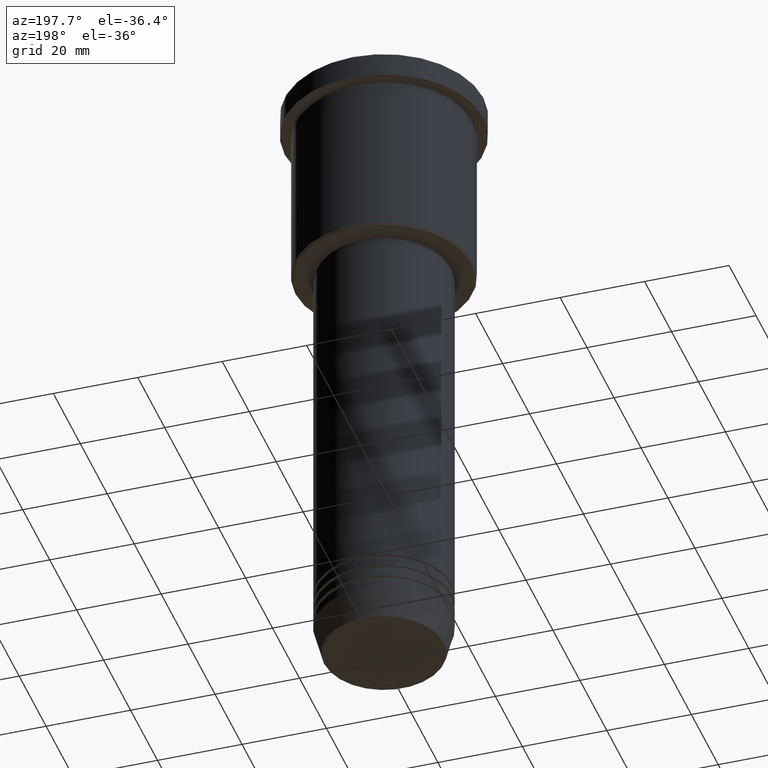
[diagram: clean part render]
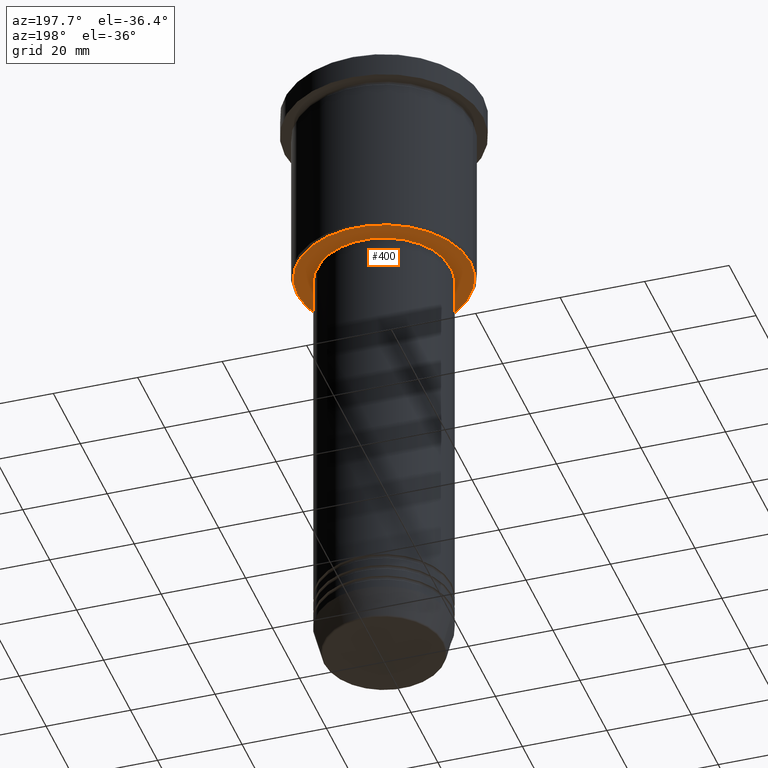
[diagram: same view with one face highlighted and labeled with its STEP entity id]
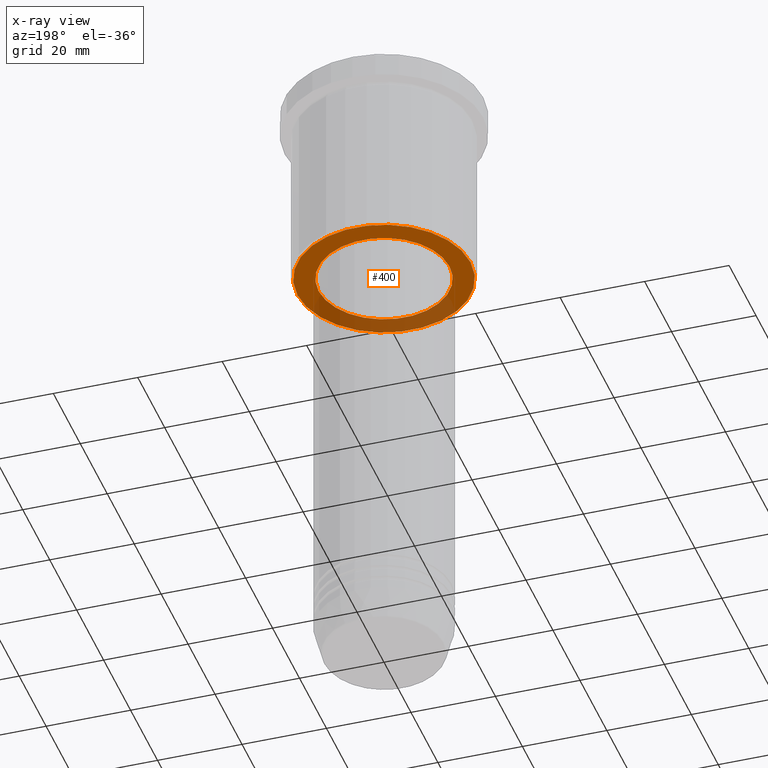
[diagram: x-ray of the same camera — body ghosted, the highlighted face saturated]
A machine part, auxiliary view. The second image highlights one B-rep face of the part: STEP entity #400.
The next image is the same camera in x-ray: the body ghosted, the highlighted face saturated — about 33% of this face is hidden behind the body in this view.
In plain terms, the highlighted planar face has unit normal (0, 0, -1).
Its self-contained STEP definition (entity closure, byte-faithful):
#16 = VERTEX_POINT ( 'NONE', #1080 ) ;
#19 = CARTESIAN_POINT ( 'NONE',  ( -15.50000000000000000, 1.898202538678397557E-15, -45.99999999999998579 ) ) ;
#75 = EDGE_CURVE ( 'NONE', #281, #16, #854, .T. ) ;
#77 = DIRECTION ( 'NONE',  ( -0.000000000000000000, -0.000000000000000000, 1.000000000000000000 ) ) ;
#88 = CARTESIAN_POINT ( 'NONE',  ( -20.50000000000003197, 2.541142108230759846E-15, -45.99999999999998579 ) ) ;
#111 = CARTESIAN_POINT ( 'NONE',  ( 0.000000000000000000, 0.000000000000000000, -45.99999999999998579 ) ) ;
#123 = CARTESIAN_POINT ( 'NONE',  ( 0.000000000000000000, 21.00000000000000000, -45.99999999999998579 ) ) ;
#159 = DIRECTION ( 'NONE',  ( 1.000000000000000000, 0.000000000000000000, 0.000000000000000000 ) ) ;
#212 = ORIENTED_EDGE ( 'NONE', *, *, #75, .T. ) ;
#220 = CIRCLE ( 'NONE', #599, 20.50000000000003197 ) ;
#277 = EDGE_LOOP ( 'NONE', ( #368, #212 ) ) ;
#281 = VERTEX_POINT ( 'NONE', #19 ) ;
#286 = DIRECTION ( 'NONE',  ( -1.000000000000000000, 0.000000000000000000, 0.000000000000000000 ) ) ;
#292 = PLANE ( 'NONE',  #774 ) ;
#300 = FACE_OUTER_BOUND ( 'NONE', #825, .T. ) ;
#359 = DIRECTION ( 'NONE',  ( 0.000000000000000000, 0.000000000000000000, -1.000000000000000000 ) ) ;
#368 = ORIENTED_EDGE ( 'NONE', *, *, #1097, .T. ) ;
#373 = CARTESIAN_POINT ( 'NONE',  ( 0.000000000000000000, 0.000000000000000000, -45.99999999999998579 ) ) ;
#400 = ADVANCED_FACE ( 'NONE', ( #300, #842 ), #292, .T. ) ;
#409 = CIRCLE ( 'NONE', #889, 20.50000000000003197 ) ;
#478 = EDGE_CURVE ( 'NONE', #1127, #903, #409, .T. ) ;
#489 = DIRECTION ( 'NONE',  ( 0.000000000000000000, 0.000000000000000000, -1.000000000000000000 ) ) ;
#557 = DIRECTION ( 'NONE',  ( -0.000000000000000000, -0.000000000000000000, 1.000000000000000000 ) ) ;
#563 = DIRECTION ( 'NONE',  ( 0.000000000000000000, 0.000000000000000000, -1.000000000000000000 ) ) ;
#599 = AXIS2_PLACEMENT_3D ( 'NONE', #656, #563, #286 ) ;
#656 = CARTESIAN_POINT ( 'NONE',  ( 0.000000000000000000, 0.000000000000000000, -45.99999999999998579 ) ) ;
#680 = AXIS2_PLACEMENT_3D ( 'NONE', #111, #557, #923 ) ;
#682 = AXIS2_PLACEMENT_3D ( 'NONE', #981, #77, #159 ) ;
#774 = AXIS2_PLACEMENT_3D ( 'NONE', #123, #489, #860 ) ;
#825 = EDGE_LOOP ( 'NONE', ( #883, #953 ) ) ;
#842 = FACE_BOUND ( 'NONE', #277, .T. ) ;
#848 = CARTESIAN_POINT ( 'NONE',  ( 20.50000000000003197, 0.000000000000000000, -45.99999999999998579 ) ) ;
#854 = CIRCLE ( 'NONE', #682, 15.50000000000000000 ) ;
#860 = DIRECTION ( 'NONE',  ( -1.000000000000000000, 0.000000000000000000, -0.000000000000000000 ) ) ;
#883 = ORIENTED_EDGE ( 'NONE', *, *, #478, .T. ) ;
#889 = AXIS2_PLACEMENT_3D ( 'NONE', #373, #359, #1177 ) ;
#903 = VERTEX_POINT ( 'NONE', #88 ) ;
#923 = DIRECTION ( 'NONE',  ( 1.000000000000000000, 0.000000000000000000, 0.000000000000000000 ) ) ;
#951 = CIRCLE ( 'NONE', #680, 15.50000000000000000 ) ;
#953 = ORIENTED_EDGE ( 'NONE', *, *, #1058, .T. ) ;
#981 = CARTESIAN_POINT ( 'NONE',  ( 0.000000000000000000, 0.000000000000000000, -45.99999999999998579 ) ) ;
#1058 = EDGE_CURVE ( 'NONE', #903, #1127, #220, .T. ) ;
#1080 = CARTESIAN_POINT ( 'NONE',  ( 15.50000000000000000, 0.000000000000000000, -45.99999999999998579 ) ) ;
#1097 = EDGE_CURVE ( 'NONE', #16, #281, #951, .T. ) ;
#1127 = VERTEX_POINT ( 'NONE', #848 ) ;
#1177 = DIRECTION ( 'NONE',  ( -1.000000000000000000, 0.000000000000000000, 0.000000000000000000 ) ) ;